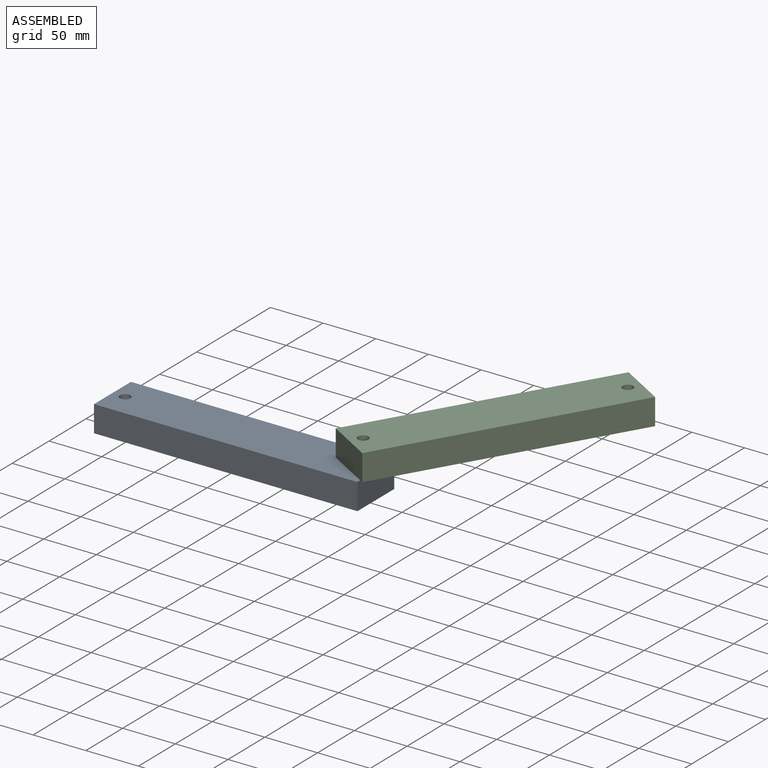
[diagram: assembled view]
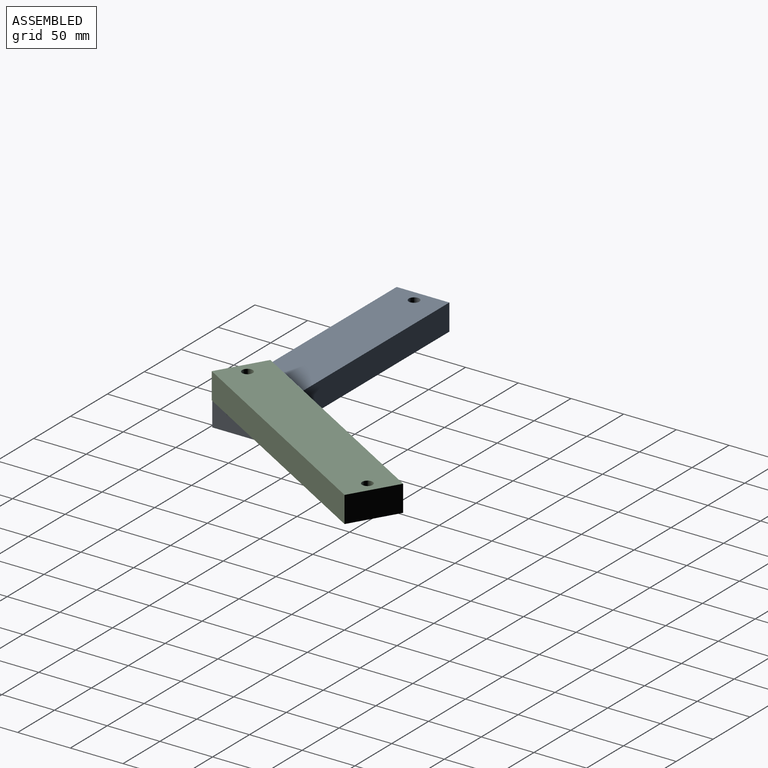
[diagram: assembled view, second angle]
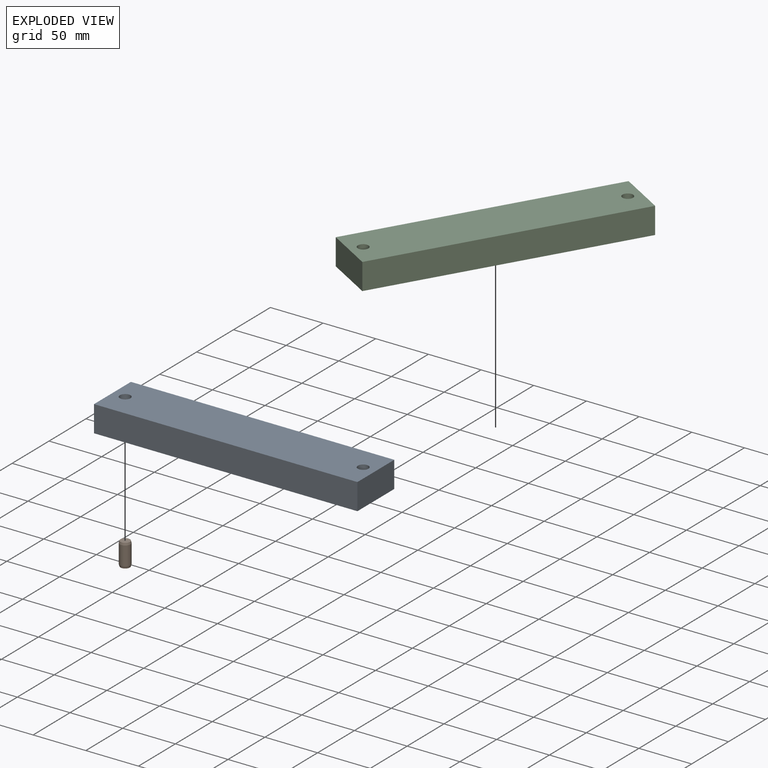
[diagram: exploded view]
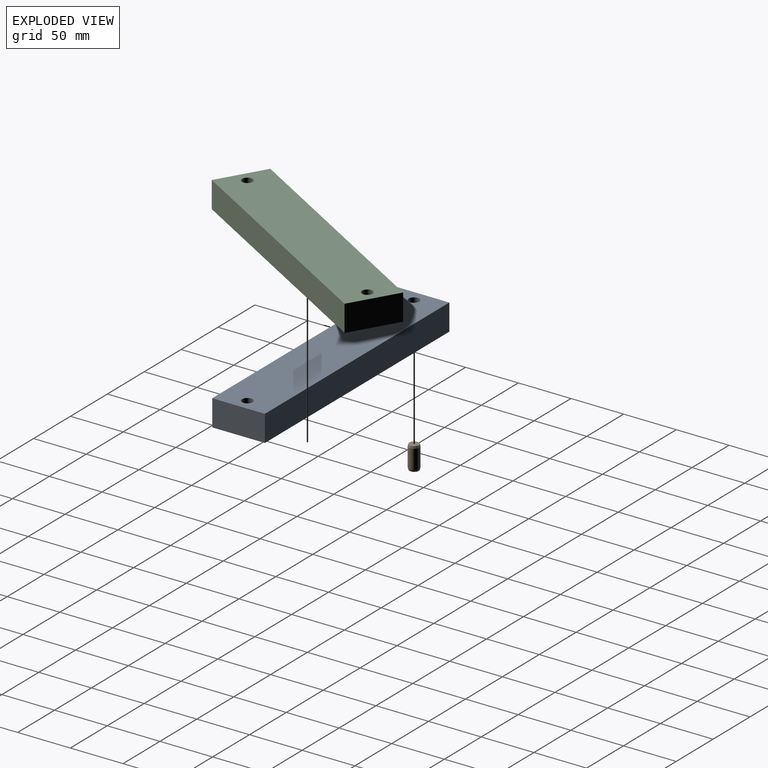
[diagram: exploded view, second angle]
ASSEMBLY  parts=3 mates=2
PART A: 8 faces, bbox 250x50x25 mm
  f0: plane 250x25mm, normal (0,1,0), area 6250mm2, adj f1,f5,f6,f7
  f1: plane 50x25mm, normal (-1,0,0), area 1250mm2, adj f0,f2,f6,f7
  f2: plane 250x25mm, normal (0,-1,0), area 6250mm2, adj f1,f5,f6,f7
  f3: cylinder r=5mm len=25mm, axis (0,0,-1), area 785.4mm2, adj f6,f7
  f4: cylinder r=5mm len=25mm, axis (0,0,-1), area 785.4mm2, adj f6,f7
  f5: plane 50x25mm, normal (1,0,0), area 1250mm2, adj f0,f2,f6,f7
  f6: plane 250x50mm, normal (0,0,1), area 12342.9mm2, adj f0,f1,f2,f3,f4,f5
  f7: plane 250x50mm, normal (0,0,-1), area 12342.9mm2, adj f0,f1,f2,f3,f4,f5
PART B: 5 faces, bbox 10x10x22 mm
  f0: plane 8.93x8.93mm, normal (0,0,1), area 62.6mm2, adj f1
  f1: cone r=4.46mm half-angle=15deg, axis (0,0,-1), area 61.6mm2, adj f0,f2
  f2: cylinder r=5mm len=18mm, axis (0,0,-1), area 565.5mm2, adj f1,f3
  f3: cone r=5mm half-angle=15deg, axis (0,0,1), area 61.6mm2, adj f2,f4
  f4: plane 8.93x8.93mm, normal (0,0,-1), area 62.6mm2, adj f3
PART C: same geometry as A
PLACE A t=(-48.12,-16.55,39.2)mm
PLACE B rot(axis=(1,0,0),180deg) t=(-161.08,-16.55,39.2)mm fixed
PLACE C rot(axis=(0,0,1),59.4deg) t=(122.35,80.66,64.2)mm
MATE fastened B.f1 <-> A.f3  axis (0,0,-1) through (-161.08,-16.55,39.2)mm
MATE revolute A.f4 <-> C.f3  axis (0,0,1) through (64.83,-16.55,64.2)mm
